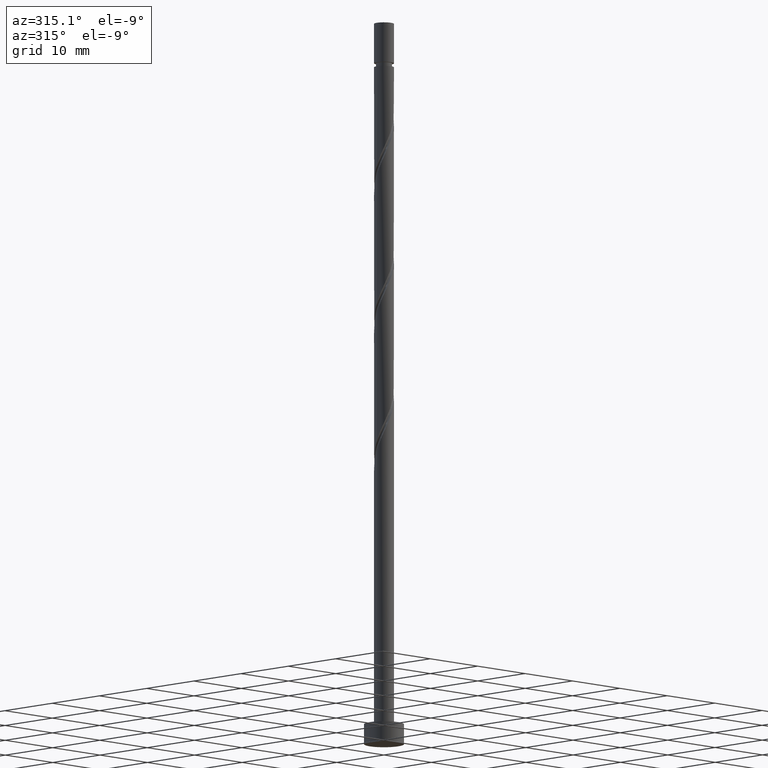
[diagram: clean part render]
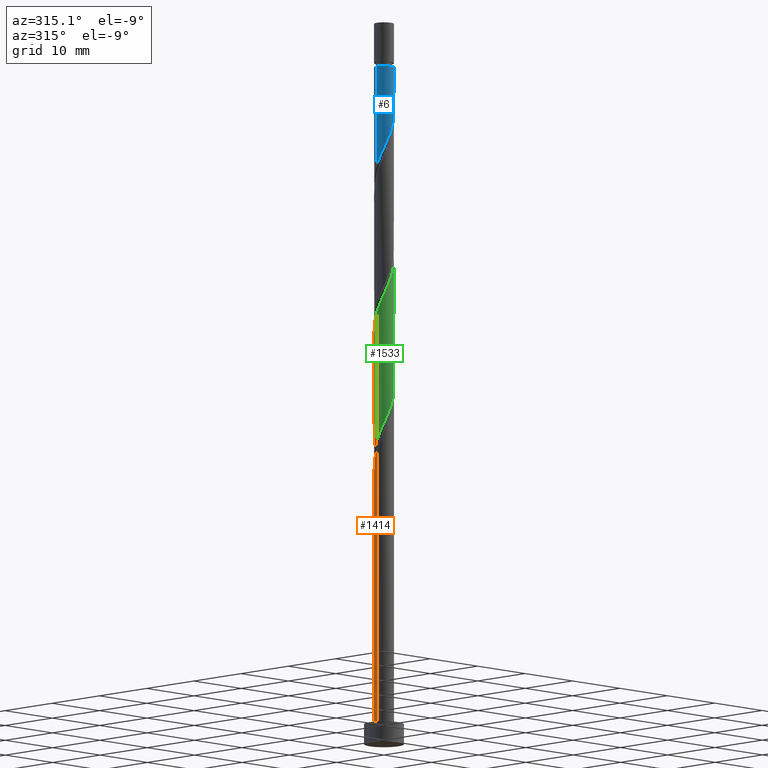
[diagram: same view with three faces highlighted in distinct colors, each labeled with its STEP entity id]
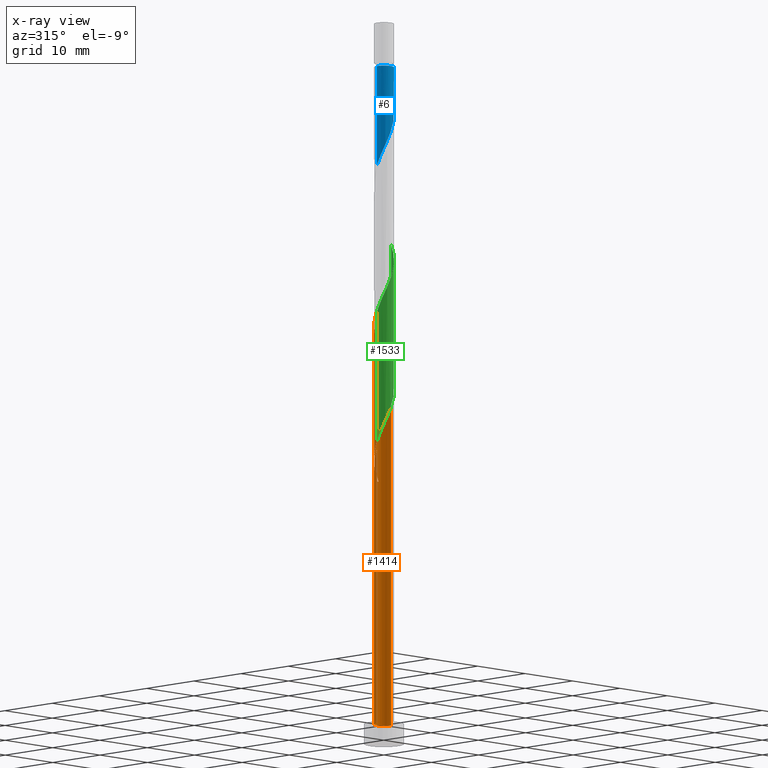
[diagram: x-ray of the same camera — body ghosted, the three highlighted faces saturated]
A machine part, auxiliary view with three faces highlighted in distinct colors.
The next image is the same camera in x-ray (body ghosted, the three faces saturated) — at least one of them is partly hidden behind the body in this view.
Their STEP definitions:

[orange] entity #1414 — the highlighted cylindrical surface (edge-blend (fillet) strip) has radius 1.5 mm, axis along (-0, -0, -1).
#8 = DIRECTION ( 'NONE',  ( -0.000000000000000000, -0.000000000000000000, -1.000000000000000000 ) ) ;
#48 = CARTESIAN_POINT ( 'NONE',  ( 0.06567110385491756186, 1.517277158506823431, 40.42737568872665577 ) ) ;
#50 = CARTESIAN_POINT ( 'NONE',  ( 0.000000000000000000, 0.000000000000000000, 39.90654235539335559 ) ) ;
#59 = CARTESIAN_POINT ( 'NONE',  ( 1.500000000000002887, 0.1507556722888796219, 55.20104448933089003 ) ) ;
#60 = ORIENTED_EDGE ( 'NONE', *, *, #487, .F. ) ;
#65 = LINE ( 'NONE', #557, #1000 ) ;
#68 = CARTESIAN_POINT ( 'NONE',  ( -0.5313213584090548114, 1.422722841493179402, 61.26070902205997726 ) ) ;
#128 = CARTESIAN_POINT ( 'NONE',  ( -1.500000000000000222, 0.000000000000000000, 3.000000000000000000 ) ) ;
#159 = CARTESIAN_POINT ( 'NONE',  ( 0.4064074959020251288, 1.463309815754243015, 59.17737568872664866 ) ) ;
#182 = CARTESIAN_POINT ( 'NONE',  ( -1.500000000000002220, 0.08546060616964894219, 44.26056215804909755 ) ) ;
#216 = ORIENTED_EDGE ( 'NONE', *, *, #781, .F. ) ;
#227 = CARTESIAN_POINT ( 'NONE',  ( -1.013803299206906372, 1.105532844612584720, 43.03154235539332717 ) ) ;
#235 = CARTESIAN_POINT ( 'NONE',  ( -1.500000000000000222, 0.000000000000000000, 108.9800000000000040 ) ) ;
#265 = AXIS2_PLACEMENT_3D ( 'NONE', #50, #560, #1130 ) ;
#276 = CARTESIAN_POINT ( 'NONE',  ( -0.7381417674387932282, 1.305812670777222184, 61.78154235539332717 ) ) ;
#280 = CARTESIAN_POINT ( 'NONE',  ( 0.000000000000000000, 0.000000000000000000, 108.9800000000000040 ) ) ;
#300 = CARTESIAN_POINT ( 'NONE',  ( -1.490293487130534222, 0.1703681960235538528, 44.07320902205998436 ) ) ;
#309 = CARTESIAN_POINT ( 'NONE',  ( -0.06567110385491700675, 1.517277158506825430, 60.21904235539330585 ) ) ;
#334 = CARTESIAN_POINT ( 'NONE',  ( -1.490293487130534222, 0.1703681960235538528, 64.90654235539331296 ) ) ;
#348 = CARTESIAN_POINT ( 'NONE',  ( -1.470000000000000639, 0.2984962311319860895, 45.11487568872665577 ) ) ;
#352 = CARTESIAN_POINT ( 'NONE',  ( -1.463309815754242571, 0.4064074959020249067, 64.38570902205998436 ) ) ;
#378 = LINE ( 'NONE', #863, #1105 ) ;
#392 = CARTESIAN_POINT ( 'NONE',  ( -0.7381417674387932282, 1.305812670777222184, 40.94820902205998436 ) ) ;
#405 = CARTESIAN_POINT ( 'NONE',  ( -1.500000000000002442, -1.206944774048063375E-15, 44.45007324725638398 ) ) ;
#430 = CARTESIAN_POINT ( 'NONE',  ( 1.188902500061265188, 0.9449621764685313119, 57.09404235539330585 ) ) ;
#437 = CARTESIAN_POINT ( 'NONE',  ( -1.500000000000002442, -1.206944774048063375E-15, 65.28340658058971258 ) ) ;
#445 = AXIS2_PLACEMENT_3D ( 'NONE', #280, #1255, #1176 ) ;
#458 = CARTESIAN_POINT ( 'NONE',  ( -0.2984962311319858119, 1.470000000000002860, 39.90654235539331296 ) ) ;
#471 = CARTESIAN_POINT ( 'NONE',  ( -1.500000000000002220, 0.08546060616965114876, 65.09389549138242614 ) ) ;
#477 = DIRECTION ( 'NONE',  ( 1.000000000000000000, 0.000000000000000000, 0.000000000000000000 ) ) ;
#484 = EDGE_CURVE ( 'NONE', #1333, #818, #65, .T. ) ;
#487 = EDGE_CURVE ( 'NONE', #837, #778, #1561, .T. ) ;
#491 = CARTESIAN_POINT ( 'NONE',  ( 1.500000000000000222, 1.836970198721030181E-16, 3.000000000000000000 ) ) ;
#506 = CARTESIAN_POINT ( 'NONE',  ( -0.6225557971272870361, 1.364706664255440183, 41.98987568872666998 ) ) ;
#509 = EDGE_CURVE ( 'NONE', #818, #778, #652, .T. ) ;
#516 = CARTESIAN_POINT ( 'NONE',  ( -0.2984962311319858119, 1.470000000000002860, 39.90654235539332007 ) ) ;
#535 = CARTESIAN_POINT ( 'NONE',  ( -1.500000000000000888, -6.776882458009044584E-15, 45.77967813019694887 ) ) ;
#557 = CARTESIAN_POINT ( 'NONE',  ( 1.500000000000000222, 1.836970198721030181E-16, 108.9800000000000040 ) ) ;
#560 = DIRECTION ( 'NONE',  ( -1.540743955509789243E-29, -2.312964634635745107E-14, -1.000000000000000000 ) ) ;
#577 = CARTESIAN_POINT ( 'NONE',  ( -1.364706664255441737, 0.6225557971272878133, 63.86487568872664866 ) ) ;
#594 = VERTEX_POINT ( 'NONE', #606 ) ;
#606 = CARTESIAN_POINT ( 'NONE',  ( 0.2984962311319863670, 1.470000000000000639, 39.90654235539331296 ) ) ;
#612 =( BOUNDED_CURVE ( )  B_SPLINE_CURVE ( 2, ( #516, #996, #392, #855, #883, #735, #1215, #1263, #300, #182, #405 ),
 .UNSPECIFIED., .F., .T. ) 
 B_SPLINE_CURVE_WITH_KNOTS ( ( 3, 2, 2, 2, 2, 3 ),
 ( 0.000000000000000000, 0.01249999999999995559, 0.02500000000000002220, 0.03749999999999997780, 0.05000000000000004441, 0.05453220231385525613 ),
 .UNSPECIFIED. ) 
 CURVE ( )  GEOMETRIC_REPRESENTATION_ITEM ( )  RATIONAL_B_SPLINE_CURVE ( ( 0.9090909090909156109, 0.8978984914501316750, 0.9090909090909156109, 0.8978984914501316750, 0.9090909090909156109, 0.8978984914501316750, 0.9090909090909156109, 0.8978984914501316750, 0.9090909090909156109, 0.9050328050005800318, 0.9039174447099380671 ) ) 
 REPRESENTATION_ITEM ( '' )  );
#652 = CIRCLE ( 'NONE', #1459, 1.500000000000000222 ) ;
#661 = CARTESIAN_POINT ( 'NONE',  ( 1.422722841493179402, 0.5313213584090544783, 56.05237568872664156 ) ) ;
#711 = ORIENTED_EDGE ( 'NONE', *, *, #509, .T. ) ;
#722 = CARTESIAN_POINT ( 'NONE',  ( -0.8387040983525495541, 1.266103512756638905, 42.51070902205997726 ) ) ;
#724 = CARTESIAN_POINT ( 'NONE',  ( 0.000000000000000000, 0.000000000000000000, 3.000000000000000000 ) ) ;
#735 = CARTESIAN_POINT ( 'NONE',  ( -1.266103512756640459, 0.8387040983525509974, 42.51070902205997726 ) ) ;
#750 = ORIENTED_EDGE ( 'NONE', *, *, #1069, .F. ) ;
#771 = CARTESIAN_POINT ( 'NONE',  ( -0.9449621764685313119, 1.188902500061264744, 62.30237568872665577 ) ) ;
#778 = VERTEX_POINT ( 'NONE', #128 ) ;
#781 = EDGE_CURVE ( 'NONE', #1085, #870, #378, .T. ) ;
#786 = CARTESIAN_POINT ( 'NONE',  ( 1.305812670777222406, 0.7381417674387931172, 56.57320902206000568 ) ) ;
#818 = VERTEX_POINT ( 'NONE', #491 ) ;
#826 = CARTESIAN_POINT ( 'NONE',  ( -1.500000000000002442, -1.206944774048063375E-15, 65.28340658058971258 ) ) ;
#837 = VERTEX_POINT ( 'NONE', #1240 ) ;
#839 = CARTESIAN_POINT ( 'NONE',  ( -1.500000000000001998, 0.1507556722888743483, 45.44537355478908580 ) ) ;
#843 = EDGE_CURVE ( 'NONE', #1137, #837, #612, .T. ) ;
#855 = CARTESIAN_POINT ( 'NONE',  ( -0.9449621764685313119, 1.188902500061264744, 41.46904235539332007 ) ) ;
#863 = CARTESIAN_POINT ( 'NONE',  ( -1.500000000000000222, 0.000000000000000000, 108.9800000000000040 ) ) ;
#864 = EDGE_CURVE ( 'NONE', #1137, #594, #884, .T. ) ;
#869 = CARTESIAN_POINT ( 'NONE',  ( -1.188902500061262968, 0.9449621764685303127, 43.55237568872666287 ) ) ;
#870 = VERTEX_POINT ( 'NONE', #535 ) ;
#875 = CARTESIAN_POINT ( 'NONE',  ( -1.422722841493176960, 0.5313213584090544783, 44.59404235539333428 ) ) ;
#883 = CARTESIAN_POINT ( 'NONE',  ( -1.105532844612586052, 1.013803299206907926, 41.98987568872664156 ) ) ;
#884 = CIRCLE ( 'NONE', #265, 1.500000000000000222 ) ;
#894 = FACE_OUTER_BOUND ( 'NONE', #1397, .T. ) ;
#896 = CARTESIAN_POINT ( 'NONE',  ( 0.6225557971272883684, 1.364706664255441293, 58.65654235539331296 ) ) ;
#904 = VECTOR ( 'NONE', #1314, 1000.000000000000000 ) ;
#921 = CARTESIAN_POINT ( 'NONE',  ( 0.8387040983525509974, 1.266103512756640015, 58.13570902205998436 ) ) ;
#936 = ORIENTED_EDGE ( 'NONE', *, *, #864, .T. ) ;
#941 = CARTESIAN_POINT ( 'NONE',  ( -1.105532844612586052, 1.013803299206907926, 62.82320902205998436 ) ) ;
#972 = ORIENTED_EDGE ( 'NONE', *, *, #1141, .F. ) ;
#988 = CARTESIAN_POINT ( 'NONE',  ( -0.4064074959020240740, 1.463309815754240351, 41.46904235539332007 ) ) ;
#996 = CARTESIAN_POINT ( 'NONE',  ( -0.5313213584090548114, 1.422722841493179402, 40.42737568872665577 ) ) ;
#1000 = VECTOR ( 'NONE', #1320, 1000.000000000000000 ) ;
#1012 = CARTESIAN_POINT ( 'NONE',  ( -0.1703681960235532977, 1.490293487130531780, 40.94820902205998436 ) ) ;
#1069 = EDGE_CURVE ( 'NONE', #1333, #1085, #1102, .T. ) ;
#1079 = DIRECTION ( 'NONE',  ( 0.000000000000000000, 0.000000000000000000, 1.000000000000000000 ) ) ;
#1085 = VERTEX_POINT ( 'NONE', #826 ) ;
#1102 =( BOUNDED_CURVE ( )  B_SPLINE_CURVE ( 2, ( #1364, #59, #1369, #661, #786, #430, #1494, #921, #896, #159, #1396, #309, #1276, #68, #276, #771, #941, #1525, #577, #352, #334, #471, #437 ),
 .UNSPECIFIED., .F., .T. ) 
 B_SPLINE_CURVE_WITH_KNOTS ( ( 3, 2, 2, 2, 2, 2, 2, 2, 2, 2, 2, 3 ),
 ( 0.1795322023138551104, 0.1875000000000000000, 0.1999999999999999556, 0.2125000000000000222, 0.2249999999999999778, 0.2375000000000000444, 0.2500000000000000000, 0.2624999999999999556, 0.2750000000000000222, 0.2874999999999999778, 0.3000000000000000444, 0.3045322023138551382 ),
 .UNSPECIFIED. ) 
 CURVE ( )  GEOMETRIC_REPRESENTATION_ITEM ( )  RATIONAL_B_SPLINE_CURVE ( ( 0.9039174447099378451, 0.9019565955404671431, 0.9090909090909156109, 0.8978984914501316750, 0.9090909090909156109, 0.8978984914501316750, 0.9090909090909156109, 0.8978984914501316750, 0.9090909090909156109, 0.8978984914501316750, 0.9090909090909156109, 0.8978984914501316750, 0.9090909090909156109, 0.8978984914501316750, 0.9090909090909156109, 0.8978984914501316750, 0.9090909090909156109, 0.8978984914501316750, 0.9090909090909156109, 0.8978984914501316750, 0.9090909090909156109, 0.9050328050005800318, 0.9039174447099378451 ) ) 
 REPRESENTATION_ITEM ( '' )  );
#1105 = VECTOR ( 'NONE', #8, 1000.000000000000000 ) ;
#1130 = DIRECTION ( 'NONE',  ( 0.000000000000000000, 1.000000000000000000, -2.312964634635742582E-14 ) ) ;
#1137 = VERTEX_POINT ( 'NONE', #458 ) ;
#1141 = EDGE_CURVE ( 'NONE', #870, #594, #1257, .T. ) ;
#1176 = DIRECTION ( 'NONE',  ( -1.000000000000000000, 0.000000000000000000, 0.000000000000000000 ) ) ;
#1189 = CARTESIAN_POINT ( 'NONE',  ( -1.500000000000000888, -6.776882458009044584E-15, 45.77967813019694887 ) ) ;
#1215 = CARTESIAN_POINT ( 'NONE',  ( -1.364706664255441737, 0.6225557971272878133, 43.03154235539333428 ) ) ;
#1240 = CARTESIAN_POINT ( 'NONE',  ( -1.500000000000002442, -1.206944774048063375E-15, 44.45007324725638398 ) ) ;
#1255 = DIRECTION ( 'NONE',  ( -0.000000000000000000, -0.000000000000000000, -1.000000000000000000 ) ) ;
#1257 =( BOUNDED_CURVE ( )  B_SPLINE_CURVE ( 2, ( #1189, #839, #348, #875, #1463, #869, #227, #722, #506, #988, #1012, #48, #1507 ),
 .UNSPECIFIED., .F., .T. ) 
 B_SPLINE_CURVE_WITH_KNOTS ( ( 3, 2, 2, 2, 2, 2, 3 ),
 ( 0.9295322023138548051, 0.9375000000000000000, 0.9499999999999999556, 0.9625000000000000222, 0.9749999999999999778, 0.9875000000000000444, 1.000000000000000000 ),
 .UNSPECIFIED. ) 
 CURVE ( )  GEOMETRIC_REPRESENTATION_ITEM ( )  RATIONAL_B_SPLINE_CURVE ( ( 0.9039174447099322940, 0.9019565955404612589, 0.9090909090909099488, 0.8978984914501261239, 0.9090909090909099488, 0.8978984914501261239, 0.9090909090909099488, 0.8978984914501261239, 0.9090909090909099488, 0.8978984914501261239, 0.9090909090909099488, 0.8978984914501261239, 0.9090909090909099488 ) ) 
 REPRESENTATION_ITEM ( '' )  );
#1263 = CARTESIAN_POINT ( 'NONE',  ( -1.463309815754242571, 0.4064074959020249067, 43.55237568872664866 ) ) ;
#1276 = CARTESIAN_POINT ( 'NONE',  ( -0.2984962311319857564, 1.470000000000002860, 60.73987568872664866 ) ) ;
#1310 = ORIENTED_EDGE ( 'NONE', *, *, #484, .T. ) ;
#1314 = DIRECTION ( 'NONE',  ( -0.000000000000000000, -0.000000000000000000, -1.000000000000000000 ) ) ;
#1320 = DIRECTION ( 'NONE',  ( -0.000000000000000000, -0.000000000000000000, -1.000000000000000000 ) ) ;
#1333 = VERTEX_POINT ( 'NONE', #1394 ) ;
#1341 = ORIENTED_EDGE ( 'NONE', *, *, #843, .F. ) ;
#1364 = CARTESIAN_POINT ( 'NONE',  ( 1.500000000000002442, 1.004537886474785654E-15, 54.86673991392304828 ) ) ;
#1367 = CYLINDRICAL_SURFACE ( 'NONE', #445, 1.500000000000000222 ) ;
#1369 = CARTESIAN_POINT ( 'NONE',  ( 1.470000000000002860, 0.2984962311319858674, 55.53154235539332717 ) ) ;
#1394 = CARTESIAN_POINT ( 'NONE',  ( 1.500000000000002442, 1.004537886474785654E-15, 54.86673991392304828 ) ) ;
#1396 = CARTESIAN_POINT ( 'NONE',  ( 0.1703681960235541304, 1.490293487130534222, 59.69820902205997726 ) ) ;
#1397 = EDGE_LOOP ( 'NONE', ( #750, #1310, #711, #60, #1341, #936, #972, #216 ) ) ;
#1414 = ADVANCED_FACE ( 'NONE', ( #894 ), #1367, .T. ) ;
#1459 = AXIS2_PLACEMENT_3D ( 'NONE', #724, #1079, #477 ) ;
#1463 = CARTESIAN_POINT ( 'NONE',  ( -1.305812670777220186, 0.7381417674387924510, 44.07320902205998436 ) ) ;
#1494 = CARTESIAN_POINT ( 'NONE',  ( 1.013803299206908148, 1.105532844612585830, 57.61487568872665577 ) ) ;
#1507 = CARTESIAN_POINT ( 'NONE',  ( 0.2984962311319863670, 1.470000000000000639, 39.90654235539331296 ) ) ;
#1525 = CARTESIAN_POINT ( 'NONE',  ( -1.266103512756640459, 0.8387040983525509974, 63.34404235539331296 ) ) ;
#1561 = LINE ( 'NONE', #235, #904 ) ;

[blue] entity #6 — the highlighted cylindrical surface (edge-blend (fillet) strip) has radius 1.5 mm, axis along (-0, -0, -1).
#6 = ADVANCED_FACE ( 'NONE', ( #1456 ), #247, .T. ) ;
#28 = CARTESIAN_POINT ( 'NONE',  ( 1.500000000000000000, 1.836970198721030181E-16, 102.4065423553933130 ) ) ;
#49 = DIRECTION ( 'NONE',  ( -1.000000000000000000, 0.000000000000000000, 0.000000000000000000 ) ) ;
#51 = EDGE_CURVE ( 'NONE', #275, #239, #1388, .T. ) ;
#69 = EDGE_LOOP ( 'NONE', ( #1487, #636, #1299, #354 ) ) ;
#93 = CARTESIAN_POINT ( 'NONE',  ( -1.490293487130532224, -0.1703681960235532145, 87.82320902205999857 ) ) ;
#100 = CARTESIAN_POINT ( 'NONE',  ( -0.2984962311319861450, -1.470000000000000639, 91.98987568872666998 ) ) ;
#222 = DIRECTION ( 'NONE',  ( -0.000000000000000000, -0.000000000000000000, -1.000000000000000000 ) ) ;
#239 = VERTEX_POINT ( 'NONE', #776 ) ;
#247 = CYLINDRICAL_SURFACE ( 'NONE', #1376, 1.500000000000000222 ) ;
#275 = VERTEX_POINT ( 'NONE', #1503 ) ;
#277 =( BOUNDED_CURVE ( )  B_SPLINE_CURVE ( 2, ( #1197, #1076, #1293, #336, #847, #1558, #838, #712, #964, #586, #1205, #347, #100, #703, #819, #1443, #1188, #361, #697, #604, #93, #450, #958 ),
 .UNSPECIFIED., .F., .T. ) 
 B_SPLINE_CURVE_WITH_KNOTS ( ( 3, 2, 2, 2, 2, 2, 2, 2, 2, 2, 2, 3 ),
 ( 0.3045322023138551382, 0.3125000000000000000, 0.3250000000000000111, 0.3375000000000000222, 0.3499999999999999778, 0.3624999999999999889, 0.3750000000000000000, 0.3875000000000000111, 0.4000000000000000222, 0.4124999999999999778, 0.4249999999999999889, 0.4295322023138552492 ),
 .UNSPECIFIED. ) 
 CURVE ( )  GEOMETRIC_REPRESENTATION_ITEM ( )  RATIONAL_B_SPLINE_CURVE ( ( 0.9039174447099322940, 0.9019565955404615920, 0.9090909090909099488, 0.8978984914501261239, 0.9090909090909099488, 0.8978984914501261239, 0.9090909090909099488, 0.8978984914501261239, 0.9090909090909099488, 0.8978984914501261239, 0.9090909090909099488, 0.8978984914501261239, 0.9090909090909099488, 0.8978984914501261239, 0.9090909090909099488, 0.8978984914501261239, 0.9090909090909099488, 0.8978984914501261239, 0.9090909090909099488, 0.8978984914501261239, 0.9090909090909099488, 0.9050328050005743696, 0.9039174447099322940 ) ) 
 REPRESENTATION_ITEM ( '' )  );
#292 = DIRECTION ( 'NONE',  ( -0.000000000000000000, -0.000000000000000000, -1.000000000000000000 ) ) ;
#308 = DIRECTION ( 'NONE',  ( -0.000000000000000000, -0.000000000000000000, -1.000000000000000000 ) ) ;
#317 = DIRECTION ( 'NONE',  ( -1.000000000000000000, 0.000000000000000000, 0.000000000000000000 ) ) ;
#336 = CARTESIAN_POINT ( 'NONE',  ( 1.422722841493176738, -0.5313213584090545893, 96.67737568872665577 ) ) ;
#341 = CARTESIAN_POINT ( 'NONE',  ( 1.500000000000000666, 1.064510297607615183E-15, 97.86301146353025615 ) ) ;
#347 = CARTESIAN_POINT ( 'NONE',  ( -0.06567110385491777003, -1.517277158506823431, 92.51070902205997015 ) ) ;
#354 = ORIENTED_EDGE ( 'NONE', *, *, #653, .F. ) ;
#361 = CARTESIAN_POINT ( 'NONE',  ( -1.266103512756638905, -0.8387040983525493321, 89.38570902205995594 ) ) ;
#369 = VERTEX_POINT ( 'NONE', #341 ) ;
#420 = CIRCLE ( 'NONE', #1211, 1.500000000000000000 ) ;
#450 = CARTESIAN_POINT ( 'NONE',  ( -1.500000000000000888, -0.08546060616964788748, 87.63585588607084276 ) ) ;
#542 = LINE ( 'NONE', #1518, #732 ) ;
#586 = CARTESIAN_POINT ( 'NONE',  ( 0.4064074959020239630, -1.463309815754240351, 93.55237568872664156 ) ) ;
#604 = CARTESIAN_POINT ( 'NONE',  ( -1.463309815754240351, -0.4064074959020240740, 88.34404235539331296 ) ) ;
#625 = VECTOR ( 'NONE', #308, 1000.000000000000000 ) ;
#636 = ORIENTED_EDGE ( 'NONE', *, *, #1466, .T. ) ;
#653 = EDGE_CURVE ( 'NONE', #369, #239, #277, .T. ) ;
#697 = CARTESIAN_POINT ( 'NONE',  ( -1.364706664255440183, -0.6225557971272867031, 88.86487568872664156 ) ) ;
#703 = CARTESIAN_POINT ( 'NONE',  ( -0.5313213584090544783, -1.422722841493176738, 91.46904235539331296 ) ) ;
#712 = CARTESIAN_POINT ( 'NONE',  ( 0.8387040983525493321, -1.266103512756638905, 94.59404235539331296 ) ) ;
#732 = VECTOR ( 'NONE', #292, 1000.000000000000000 ) ;
#776 = CARTESIAN_POINT ( 'NONE',  ( -1.500000000000000666, -1.259420633789291334E-15, 87.44634479686358475 ) ) ;
#819 = CARTESIAN_POINT ( 'NONE',  ( -0.7381417674387925620, -1.305812670777220186, 90.94820902205997015 ) ) ;
#838 = CARTESIAN_POINT ( 'NONE',  ( 1.013803299206906150, -1.105532844612584720, 95.11487568872664156 ) ) ;
#847 = CARTESIAN_POINT ( 'NONE',  ( 1.305812670777220186, -0.7381417674387927841, 96.15654235539331296 ) ) ;
#907 = EDGE_CURVE ( 'NONE', #1363, #369, #542, .T. ) ;
#958 = CARTESIAN_POINT ( 'NONE',  ( -1.500000000000000666, -1.259420633789291334E-15, 87.44634479686358475 ) ) ;
#964 = CARTESIAN_POINT ( 'NONE',  ( 0.6225557971272867031, -1.364706664255440183, 94.07320902205999857 ) ) ;
#1058 = CARTESIAN_POINT ( 'NONE',  ( 0.000000000000000000, 0.000000000000000000, 102.4065423553933130 ) ) ;
#1076 = CARTESIAN_POINT ( 'NONE',  ( 1.500000000000000444, -0.1507556722888814538, 97.52870688812242861 ) ) ;
#1150 = DIRECTION ( 'NONE',  ( -0.000000000000000000, -0.000000000000000000, -1.000000000000000000 ) ) ;
#1188 = CARTESIAN_POINT ( 'NONE',  ( -1.105532844612584720, -1.013803299206906150, 89.90654235539331296 ) ) ;
#1197 = CARTESIAN_POINT ( 'NONE',  ( 1.500000000000000666, 1.064510297607615183E-15, 97.86301146353025615 ) ) ;
#1205 = CARTESIAN_POINT ( 'NONE',  ( 0.1703681960235531034, -1.490293487130532224, 93.03154235539332717 ) ) ;
#1211 = AXIS2_PLACEMENT_3D ( 'NONE', #1058, #222, #317 ) ;
#1293 = CARTESIAN_POINT ( 'NONE',  ( 1.470000000000000639, -0.2984962311319863115, 97.19820902205999857 ) ) ;
#1299 = ORIENTED_EDGE ( 'NONE', *, *, #51, .T. ) ;
#1363 = VERTEX_POINT ( 'NONE', #28 ) ;
#1376 = AXIS2_PLACEMENT_3D ( 'NONE', #1380, #1150, #49 ) ;
#1380 = CARTESIAN_POINT ( 'NONE',  ( 0.000000000000000000, 0.000000000000000000, 108.9800000000000040 ) ) ;
#1388 = LINE ( 'NONE', #1403, #625 ) ;
#1403 = CARTESIAN_POINT ( 'NONE',  ( -1.500000000000000222, 0.000000000000000000, 108.9800000000000040 ) ) ;
#1443 = CARTESIAN_POINT ( 'NONE',  ( -0.9449621764685304237, -1.188902500061262968, 90.42737568872666998 ) ) ;
#1456 = FACE_OUTER_BOUND ( 'NONE', #69, .T. ) ;
#1466 = EDGE_CURVE ( 'NONE', #1363, #275, #420, .T. ) ;
#1487 = ORIENTED_EDGE ( 'NONE', *, *, #907, .F. ) ;
#1503 = CARTESIAN_POINT ( 'NONE',  ( -1.500000000000000000, 0.000000000000000000, 102.4065423553933130 ) ) ;
#1518 = CARTESIAN_POINT ( 'NONE',  ( 1.500000000000000222, 1.836970198721030181E-16, 108.9800000000000040 ) ) ;
#1558 = CARTESIAN_POINT ( 'NONE',  ( 1.188902500061262968, -0.9449621764685304237, 95.63570902205998436 ) ) ;

[green] entity #1533 — the highlighted cylindrical surface (edge-blend (fillet) strip) has radius 1.5 mm, axis along (-0, -0, -1).
#8 = DIRECTION ( 'NONE',  ( -0.000000000000000000, -0.000000000000000000, -1.000000000000000000 ) ) ;
#45 = CARTESIAN_POINT ( 'NONE',  ( -0.1703681960235538806, -1.490293487130534222, 70.11487568872666998 ) ) ;
#52 = ORIENTED_EDGE ( 'NONE', *, *, #554, .F. ) ;
#75 = CARTESIAN_POINT ( 'NONE',  ( -1.500000000000002442, -1.206944774048063375E-15, 65.28340658058971258 ) ) ;
#79 = CARTESIAN_POINT ( 'NONE',  ( 0.9449621764685313119, -1.188902500061264744, 72.71904235539331296 ) ) ;
#81 = CARTESIAN_POINT ( 'NONE',  ( -0.06567110385491777003, -1.517277158506823431, 50.84404235539332717 ) ) ;
#95 = CARTESIAN_POINT ( 'NONE',  ( 0.8387040983525493321, -1.266103512756638905, 52.92737568872664156 ) ) ;
#168 = CARTESIAN_POINT ( 'NONE',  ( 1.463309815754243015, -0.4064074959020250732, 74.80237568872664156 ) ) ;
#186 = CARTESIAN_POINT ( 'NONE',  ( 0.6225557971272867031, -1.364706664255440183, 52.40654235539331296 ) ) ;
#191 = ORIENTED_EDGE ( 'NONE', *, *, #386, .F. ) ;
#195 = CARTESIAN_POINT ( 'NONE',  ( -1.499999999999999778, -0.08546060616965693579, 45.96918921940422109 ) ) ;
#197 = CARTESIAN_POINT ( 'NONE',  ( -1.500000000000002887, -0.1507556722888803991, 65.61771115599755433 ) ) ;
#210 = CARTESIAN_POINT ( 'NONE',  ( -1.105532844612584720, -1.013803299206906150, 48.23987568872664156 ) ) ;
#249 = EDGE_CURVE ( 'NONE', #1085, #1356, #567, .T. ) ;
#256 = VERTEX_POINT ( 'NONE', #1513 ) ;
#325 = CARTESIAN_POINT ( 'NONE',  ( -0.7381417674387925620, -1.305812670777220186, 49.28154235539332007 ) ) ;
#326 = DIRECTION ( 'NONE',  ( -1.000000000000000000, 0.000000000000000000, 0.000000000000000000 ) ) ;
#332 = CARTESIAN_POINT ( 'NONE',  ( 1.500000000000000888, -1.791675782593099320E-15, 56.19634479686358475 ) ) ;
#378 = LINE ( 'NONE', #863, #1105 ) ;
#386 = EDGE_CURVE ( 'NONE', #256, #870, #736, .T. ) ;
#434 = CARTESIAN_POINT ( 'NONE',  ( -0.2984962311319861450, -1.470000000000000639, 50.32320902205998436 ) ) ;
#451 = CARTESIAN_POINT ( 'NONE',  ( 0.7381417674387931172, -1.305812670777222406, 72.19820902205997015 ) ) ;
#455 = ORIENTED_EDGE ( 'NONE', *, *, #249, .F. ) ;
#469 = CARTESIAN_POINT ( 'NONE',  ( -1.490293487130532224, -0.1703681960235532145, 46.15654235539332717 ) ) ;
#485 = DIRECTION ( 'NONE',  ( -0.000000000000000000, -0.000000000000000000, -1.000000000000000000 ) ) ;
#535 = CARTESIAN_POINT ( 'NONE',  ( -1.500000000000000888, -6.776882458009044584E-15, 45.77967813019694887 ) ) ;
#543 = ORIENTED_EDGE ( 'NONE', *, *, #781, .T. ) ;
#546 = CARTESIAN_POINT ( 'NONE',  ( 0.5313213584090545893, -1.422722841493179402, 71.67737568872666998 ) ) ;
#554 = EDGE_CURVE ( 'NONE', #1356, #256, #1208, .T. ) ;
#567 =( BOUNDED_CURVE ( )  B_SPLINE_CURVE ( 2, ( #75, #197, #1050, #568, #695, #1168, #937, #822, #1139, #1417, #45, #1055, #796, #546, #451, #79, #1384, #672, #1019, #168, #664, #1407, #930 ),
 .UNSPECIFIED., .F., .T. ) 
 B_SPLINE_CURVE_WITH_KNOTS ( ( 3, 2, 2, 2, 2, 2, 2, 2, 2, 2, 2, 3 ),
 ( 0.3045322023138551382, 0.3125000000000000000, 0.3249999999999999556, 0.3375000000000000222, 0.3499999999999999778, 0.3625000000000000444, 0.3750000000000000000, 0.3874999999999999556, 0.4000000000000000222, 0.4124999999999999778, 0.4250000000000000444, 0.4295322023138551382 ),
 .UNSPECIFIED. ) 
 CURVE ( )  GEOMETRIC_REPRESENTATION_ITEM ( )  RATIONAL_B_SPLINE_CURVE ( ( 0.9039174447099378451, 0.9019565955404671431, 0.9090909090909156109, 0.8978984914501316750, 0.9090909090909156109, 0.8978984914501316750, 0.9090909090909156109, 0.8978984914501316750, 0.9090909090909156109, 0.8978984914501316750, 0.9090909090909156109, 0.8978984914501316750, 0.9090909090909156109, 0.8978984914501316750, 0.9090909090909156109, 0.8978984914501316750, 0.9090909090909156109, 0.8978984914501316750, 0.9090909090909156109, 0.8978984914501316750, 0.9090909090909156109, 0.9050328050005800318, 0.9039174447099378451 ) ) 
 REPRESENTATION_ITEM ( '' )  );
#568 = CARTESIAN_POINT ( 'NONE',  ( -1.422722841493179402, -0.5313213584090547004, 66.46904235539331296 ) ) ;
#582 = CARTESIAN_POINT ( 'NONE',  ( 1.013803299206906150, -1.105532844612584720, 53.44820902205999147 ) ) ;
#664 = CARTESIAN_POINT ( 'NONE',  ( 1.490293487130534222, -0.1703681960235539916, 75.32320902205997015 ) ) ;
#672 = CARTESIAN_POINT ( 'NONE',  ( 1.266103512756640459, -0.8387040983525509974, 73.76070902205999857 ) ) ;
#693 = CARTESIAN_POINT ( 'NONE',  ( -1.463309815754240351, -0.4064074959020240740, 46.67737568872665577 ) ) ;
#694 = CYLINDRICAL_SURFACE ( 'NONE', #1435, 1.500000000000000222 ) ;
#695 = CARTESIAN_POINT ( 'NONE',  ( -1.305812670777222406, -0.7381417674387932282, 66.98987568872666998 ) ) ;
#736 =( BOUNDED_CURVE ( )  B_SPLINE_CURVE ( 2, ( #332, #939, #1057, #1419, #1296, #1175, #582, #95, #186, #824, #1166, #81, #434, #1409, #325, #926, #210, #830, #1282, #693, #469, #195, #815 ),
 .UNSPECIFIED., .F., .T. ) 
 B_SPLINE_CURVE_WITH_KNOTS ( ( 3, 2, 2, 2, 2, 2, 2, 2, 2, 2, 2, 3 ),
 ( 0.8045322023138551382, 0.8125000000000000000, 0.8249999999999999556, 0.8375000000000000222, 0.8499999999999999778, 0.8625000000000000444, 0.8750000000000000000, 0.8874999999999999556, 0.9000000000000000222, 0.9124999999999999778, 0.9250000000000000444, 0.9295322023138548051 ),
 .UNSPECIFIED. ) 
 CURVE ( )  GEOMETRIC_REPRESENTATION_ITEM ( )  RATIONAL_B_SPLINE_CURVE ( ( 0.9039174447099322940, 0.9019565955404615920, 0.9090909090909099488, 0.8978984914501261239, 0.9090909090909099488, 0.8978984914501261239, 0.9090909090909099488, 0.8978984914501261239, 0.9090909090909099488, 0.8978984914501261239, 0.9090909090909099488, 0.8978984914501261239, 0.9090909090909099488, 0.8978984914501261239, 0.9090909090909099488, 0.8978984914501261239, 0.9090909090909099488, 0.8978984914501261239, 0.9090909090909099488, 0.8978984914501261239, 0.9090909090909099488, 0.9050328050005747027, 0.9039174447099322940 ) ) 
 REPRESENTATION_ITEM ( '' )  );
#781 = EDGE_CURVE ( 'NONE', #1085, #870, #378, .T. ) ;
#796 = CARTESIAN_POINT ( 'NONE',  ( 0.2984962311319860340, -1.470000000000002638, 71.15654235539331296 ) ) ;
#815 = CARTESIAN_POINT ( 'NONE',  ( -1.500000000000000888, -6.776882458009044584E-15, 45.77967813019694887 ) ) ;
#816 = CARTESIAN_POINT ( 'NONE',  ( 0.000000000000000000, 0.000000000000000000, 108.9800000000000040 ) ) ;
#822 = CARTESIAN_POINT ( 'NONE',  ( -0.8387040983525509974, -1.266103512756640459, 68.55237568872664156 ) ) ;
#824 = CARTESIAN_POINT ( 'NONE',  ( 0.4064074959020239630, -1.463309815754240351, 51.88570902205997726 ) ) ;
#826 = CARTESIAN_POINT ( 'NONE',  ( -1.500000000000002442, -1.206944774048063375E-15, 65.28340658058971258 ) ) ;
#830 = CARTESIAN_POINT ( 'NONE',  ( -1.266103512756638905, -0.8387040983525493321, 47.71904235539332007 ) ) ;
#863 = CARTESIAN_POINT ( 'NONE',  ( -1.500000000000000222, 0.000000000000000000, 108.9800000000000040 ) ) ;
#870 = VERTEX_POINT ( 'NONE', #535 ) ;
#926 = CARTESIAN_POINT ( 'NONE',  ( -0.9449621764685304237, -1.188902500061262968, 48.76070902205997726 ) ) ;
#930 = CARTESIAN_POINT ( 'NONE',  ( 1.500000000000002442, 1.004537886474785654E-15, 75.70007324725638398 ) ) ;
#937 = CARTESIAN_POINT ( 'NONE',  ( -1.013803299206907926, -1.105532844612585830, 68.03154235539331296 ) ) ;
#939 = CARTESIAN_POINT ( 'NONE',  ( 1.500000000000000444, -0.1507556722888807044, 55.86204022145573589 ) ) ;
#957 = EDGE_LOOP ( 'NONE', ( #52, #455, #543, #191 ) ) ;
#1019 = CARTESIAN_POINT ( 'NONE',  ( 1.364706664255441293, -0.6225557971272882574, 74.28154235539332717 ) ) ;
#1050 = CARTESIAN_POINT ( 'NONE',  ( -1.470000000000002638, -0.2984962311319860895, 65.94820902205998436 ) ) ;
#1055 = CARTESIAN_POINT ( 'NONE',  ( 0.06567110385491718716, -1.517277158506825430, 70.63570902205997015 ) ) ;
#1057 = CARTESIAN_POINT ( 'NONE',  ( 1.470000000000000639, -0.2984962311319863115, 55.53154235539331296 ) ) ;
#1085 = VERTEX_POINT ( 'NONE', #826 ) ;
#1105 = VECTOR ( 'NONE', #8, 1000.000000000000000 ) ;
#1122 = CARTESIAN_POINT ( 'NONE',  ( 1.500000000000002442, 1.004537886474785654E-15, 75.70007324725638398 ) ) ;
#1139 = CARTESIAN_POINT ( 'NONE',  ( -0.6225557971272882574, -1.364706664255441293, 69.07320902205997015 ) ) ;
#1166 = CARTESIAN_POINT ( 'NONE',  ( 0.1703681960235531034, -1.490293487130532224, 51.36487568872664866 ) ) ;
#1167 = DIRECTION ( 'NONE',  ( -0.000000000000000000, -0.000000000000000000, -1.000000000000000000 ) ) ;
#1168 = CARTESIAN_POINT ( 'NONE',  ( -1.188902500061264744, -0.9449621764685313119, 67.51070902205998436 ) ) ;
#1175 = CARTESIAN_POINT ( 'NONE',  ( 1.188902500061262968, -0.9449621764685304237, 53.96904235539330585 ) ) ;
#1193 = FACE_OUTER_BOUND ( 'NONE', #957, .T. ) ;
#1208 = LINE ( 'NONE', #1569, #1535 ) ;
#1282 = CARTESIAN_POINT ( 'NONE',  ( -1.364706664255440183, -0.6225557971272867031, 47.19820902205997726 ) ) ;
#1296 = CARTESIAN_POINT ( 'NONE',  ( 1.305812670777220186, -0.7381417674387927841, 54.48987568872665577 ) ) ;
#1356 = VERTEX_POINT ( 'NONE', #1122 ) ;
#1384 = CARTESIAN_POINT ( 'NONE',  ( 1.105532844612585830, -1.013803299206907926, 73.23987568872664156 ) ) ;
#1407 = CARTESIAN_POINT ( 'NONE',  ( 1.500000000000002220, -0.08546060616965135692, 75.51056215804909755 ) ) ;
#1409 = CARTESIAN_POINT ( 'NONE',  ( -0.5313213584090544783, -1.422722841493176738, 49.80237568872664866 ) ) ;
#1417 = CARTESIAN_POINT ( 'NONE',  ( -0.4064074959020250732, -1.463309815754243015, 69.59404235539332717 ) ) ;
#1419 = CARTESIAN_POINT ( 'NONE',  ( 1.422722841493176738, -0.5313213584090545893, 55.01070902205997726 ) ) ;
#1435 = AXIS2_PLACEMENT_3D ( 'NONE', #816, #1167, #326 ) ;
#1513 = CARTESIAN_POINT ( 'NONE',  ( 1.500000000000000888, -1.791675782593099320E-15, 56.19634479686358475 ) ) ;
#1533 = ADVANCED_FACE ( 'NONE', ( #1193 ), #694, .T. ) ;
#1535 = VECTOR ( 'NONE', #485, 1000.000000000000000 ) ;
#1569 = CARTESIAN_POINT ( 'NONE',  ( 1.500000000000000222, 1.836970198721030181E-16, 108.9800000000000040 ) ) ;